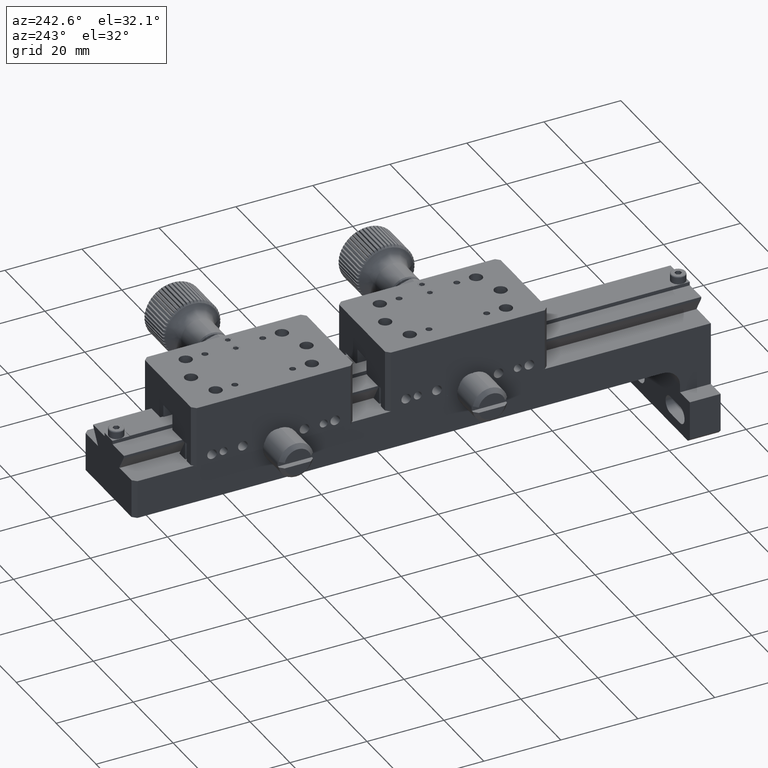
[diagram: clean part render]
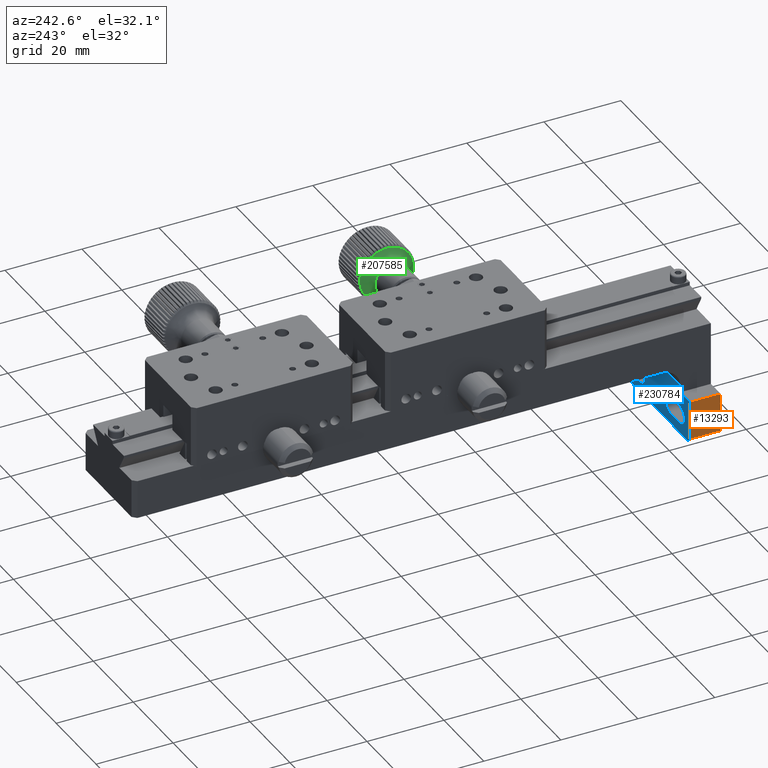
[diagram: same view with three faces highlighted in distinct colors, each labeled with its STEP entity id]
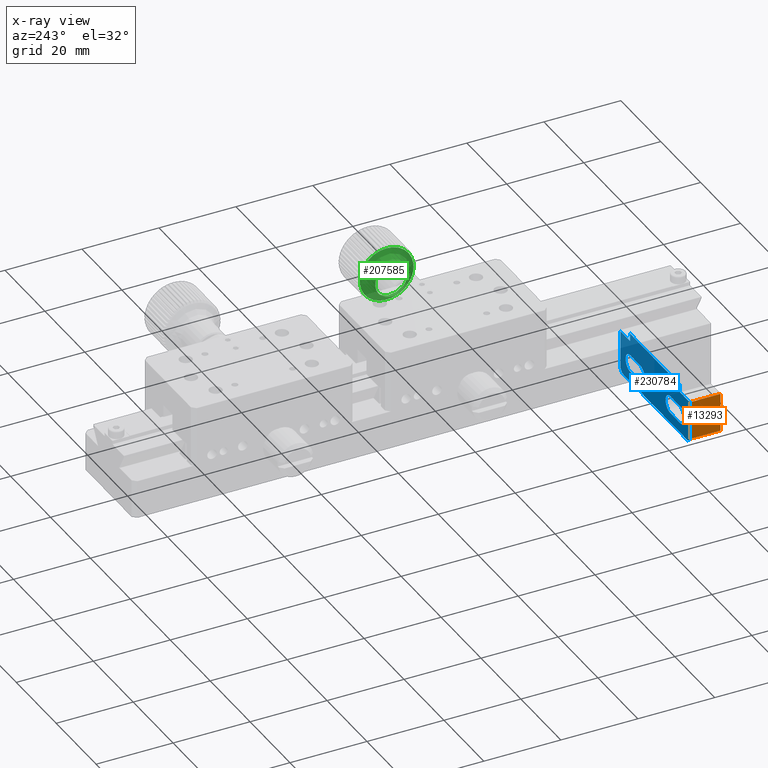
[diagram: x-ray of the same camera — body ghosted, the three highlighted faces saturated]
A machine part, auxiliary view with three faces highlighted in distinct colors.
The next image is the same camera in x-ray (body ghosted, the three faces saturated) — at least one of them is partly hidden behind the body in this view.
Their STEP definitions:

[orange] entity #13293 — the highlighted planar face has unit normal (-1, 0, -0).
#3068 = DIRECTION ( 'NONE',  ( -4.153203184749335138E-30, -1.000000000000000000, -1.646779214876870945E-45 ) ) ;
#7846 = LINE ( 'NONE', #201631, #25861 ) ;
#13050 = ORIENTED_EDGE ( 'NONE', *, *, #106882, .T. ) ;
#13293 = ADVANCED_FACE ( 'NONE', ( #224790 ), #100991, .T. ) ;
#22605 = VERTEX_POINT ( 'NONE', #151375 ) ;
#25861 = VECTOR ( 'NONE', #43966, 1000.000000000000000 ) ;
#31115 = AXIS2_PLACEMENT_3D ( 'NONE', #78874, #64791, #172228 ) ;
#32580 = EDGE_CURVE ( 'NONE', #64583, #22605, #7846, .T. ) ;
#32590 = CARTESIAN_POINT ( 'NONE',  ( -42.75755063790384725, -63.92240437158443456, -20.95415882861682277 ) ) ;
#38081 = VERTEX_POINT ( 'NONE', #182726 ) ;
#43966 = DIRECTION ( 'NONE',  ( 0.000000000000000000, -1.047444401652940164E-14, 1.000000000000000000 ) ) ;
#54408 = CARTESIAN_POINT ( 'NONE',  ( -42.75755063790384014, -63.92240437158461219, -20.95415882861682277 ) ) ;
#64583 = VERTEX_POINT ( 'NONE', #32590 ) ;
#64791 = DIRECTION ( 'NONE',  ( -1.000000000000000000, 4.153203184749335138E-30, -3.965082230804129727E-16 ) ) ;
#73657 = VECTOR ( 'NONE', #102270, 1000.000000000000000 ) ;
#78874 = CARTESIAN_POINT ( 'NONE',  ( -42.75755063790384725, -63.92240437158461219, -4.454158828616828103 ) ) ;
#91854 = VERTEX_POINT ( 'NONE', #158394 ) ;
#100991 = PLANE ( 'NONE',  #31115 ) ;
#102270 = DIRECTION ( 'NONE',  ( 0.000000000000000000, 1.047444401652940164E-14, -1.000000000000000000 ) ) ;
#103594 = DIRECTION ( 'NONE',  ( 0.000000000000000000, 1.000000000000000000, 1.047444401652940164E-14 ) ) ;
#106882 = EDGE_CURVE ( 'NONE', #91854, #22605, #178267, .T. ) ;
#113964 = ORIENTED_EDGE ( 'NONE', *, *, #225570, .F. ) ;
#136277 = ORIENTED_EDGE ( 'NONE', *, *, #32580, .F. ) ;
#139895 = EDGE_LOOP ( 'NONE', ( #113964, #13050, #136277, #202454 ) ) ;
#151375 = CARTESIAN_POINT ( 'NONE',  ( -42.75755063790384725, -63.92240437158454114, -10.95415882861683343 ) ) ;
#157138 = LINE ( 'NONE', #192166, #73657 ) ;
#158394 = CARTESIAN_POINT ( 'NONE',  ( -42.75755063790384725, -71.92240437158453403, -10.95415882861692403 ) ) ;
#171285 = VECTOR ( 'NONE', #103594, 1000.000000000000000 ) ;
#171742 = EDGE_CURVE ( 'NONE', #64583, #38081, #214403, .T. ) ;
#172228 = DIRECTION ( 'NONE',  ( -3.965082230804129727E-16, 0.000000000000000000, 1.000000000000000000 ) ) ;
#173684 = CARTESIAN_POINT ( 'NONE',  ( -42.75755063790384725, -71.92240437158454824, -10.95415882861692403 ) ) ;
#178267 = LINE ( 'NONE', #173684, #171285 ) ;
#182726 = CARTESIAN_POINT ( 'NONE',  ( -42.75755063790385435, -71.92240437158442035, -20.95415882861686896 ) ) ;
#192166 = CARTESIAN_POINT ( 'NONE',  ( -42.75755063790384725, -71.92240437158460509, -4.454158828616924914 ) ) ;
#201631 = CARTESIAN_POINT ( 'NONE',  ( -42.75755063790384725, -63.92240437158461219, -4.454158828616828103 ) ) ;
#202454 = ORIENTED_EDGE ( 'NONE', *, *, #171742, .T. ) ;
#214403 = LINE ( 'NONE', #54408, #218606 ) ;
#218606 = VECTOR ( 'NONE', #3068, 1000.000000000000000 ) ;
#224790 = FACE_OUTER_BOUND ( 'NONE', #139895, .T. ) ;
#225570 = EDGE_CURVE ( 'NONE', #91854, #38081, #157138, .T. ) ;

[blue] entity #230784 — the highlighted planar face has unit normal (0, 1, 0).
#1784 = EDGE_CURVE ( 'NONE', #7994, #170872, #140537, .T. ) ;
#6597 = CARTESIAN_POINT ( 'NONE',  ( -8.957550637903850088, -63.92240437158440614, -21.95415882861681567 ) ) ;
#7846 = LINE ( 'NONE', #201631, #25861 ) ;
#7994 = VERTEX_POINT ( 'NONE', #223589 ) ;
#8483 = CARTESIAN_POINT ( 'NONE',  ( -25.35755063790384867, -63.92240437158454114, -10.95415882861682633 ) ) ;
#9341 = AXIS2_PLACEMENT_3D ( 'NONE', #22734, #44851, #76433 ) ;
#9762 = VECTOR ( 'NONE', #66029, 1000.000000000000000 ) ;
#11910 = DIRECTION ( 'NONE',  ( 1.000000000000000000, 0.000000000000000000, -0.000000000000000000 ) ) ;
#12559 = VECTOR ( 'NONE', #26056, 1000.000000000000000 ) ;
#12920 = CARTESIAN_POINT ( 'NONE',  ( -12.85755063790385044, -63.92240437158446298, -17.05415882861683485 ) ) ;
#15970 = DIRECTION ( 'NONE',  ( 0.000000000000000000, 1.000000000000000000, 1.047444401652940164E-14 ) ) ;
#19093 = EDGE_CURVE ( 'NONE', #132745, #92130, #99944, .T. ) ;
#20493 = CARTESIAN_POINT ( 'NONE',  ( -37.85755063790385577, -63.92240437158448429, -17.05415882861683485 ) ) ;
#20628 = VERTEX_POINT ( 'NONE', #39625 ) ;
#21223 = LINE ( 'NONE', #163680, #192689 ) ;
#22605 = VERTEX_POINT ( 'NONE', #151375 ) ;
#22734 = CARTESIAN_POINT ( 'NONE',  ( -32.85755063790384867, -63.92240437158446298, -17.05415882861683485 ) ) ;
#24020 = LINE ( 'NONE', #186317, #214945 ) ;
#25508 = LINE ( 'NONE', #96711, #80883 ) ;
#25861 = VECTOR ( 'NONE', #43966, 1000.000000000000000 ) ;
#26056 = DIRECTION ( 'NONE',  ( 1.000000000000000000, 0.000000000000000000, -0.000000000000000000 ) ) ;
#27345 = CARTESIAN_POINT ( 'NONE',  ( -25.35755063790384867, -63.92240437158449851, -14.80415882861682597 ) ) ;
#32580 = EDGE_CURVE ( 'NONE', #64583, #22605, #7846, .T. ) ;
#32590 = CARTESIAN_POINT ( 'NONE',  ( -42.75755063790384725, -63.92240437158443456, -20.95415882861682277 ) ) ;
#32704 = CARTESIAN_POINT ( 'NONE',  ( -17.85755063790385577, -63.92240437158446298, -19.30415882861683130 ) ) ;
#33866 = EDGE_CURVE ( 'NONE', #85858, #185007, #57738, .T. ) ;
#36073 = ORIENTED_EDGE ( 'NONE', *, *, #190755, .T. ) ;
#38820 = DIRECTION ( 'NONE',  ( 1.000000000000000000, -3.911410985983294585E-32, -4.221912464982364608E-46 ) ) ;
#39625 = CARTESIAN_POINT ( 'NONE',  ( -12.85755063790385044, -63.92240437158455535, -10.95415882861682633 ) ) ;
#40710 = CARTESIAN_POINT ( 'NONE',  ( -25.35755063790384867, -63.92240437158442035, -21.95415882861681567 ) ) ;
#42160 = EDGE_CURVE ( 'NONE', #205523, #56384, #200680, .T. ) ;
#43966 = DIRECTION ( 'NONE',  ( 0.000000000000000000, -1.047444401652940164E-14, 1.000000000000000000 ) ) ;
#44401 = CIRCLE ( 'NONE', #227114, 2.250000000000001776 ) ;
#44851 = DIRECTION ( 'NONE',  ( -0.000000000000000000, -1.000000000000000000, -1.047444401652940164E-14 ) ) ;
#47354 = VERTEX_POINT ( 'NONE', #56156 ) ;
#49058 = CARTESIAN_POINT ( 'NONE',  ( -12.85755063790385044, -63.92240437158455535, -8.954158828616824550 ) ) ;
#49840 = PLANE ( 'NONE',  #200375 ) ;
#56156 = CARTESIAN_POINT ( 'NONE',  ( -7.957550637903862523, -63.92240437158442035, -20.95415882861687606 ) ) ;
#56384 = VERTEX_POINT ( 'NONE', #70267 ) ;
#57738 = LINE ( 'NONE', #27345, #59327 ) ;
#59327 = VECTOR ( 'NONE', #201366, 1000.000000000000000 ) ;
#62103 = VECTOR ( 'NONE', #11910, 1000.000000000000000 ) ;
#62758 = CARTESIAN_POINT ( 'NONE',  ( -37.85755063790385577, -63.92240437158449851, -14.80415882861682597 ) ) ;
#64583 = VERTEX_POINT ( 'NONE', #32590 ) ;
#66029 = DIRECTION ( 'NONE',  ( -1.000000000000000000, -0.000000000000000000, 0.000000000000000000 ) ) ;
#67988 = CARTESIAN_POINT ( 'NONE',  ( -7.957550637903848312, -63.92240437158454114, -10.95415882861683343 ) ) ;
#70267 = CARTESIAN_POINT ( 'NONE',  ( -41.75755063790380461, -63.92240437158442035, -21.95415882861684409 ) ) ;
#70324 = VECTOR ( 'NONE', #134074, 1000.000000000000000 ) ;
#72613 = CIRCLE ( 'NONE', #9341, 2.250000000000001776 ) ;
#73395 = ORIENTED_EDGE ( 'NONE', *, *, #19093, .T. ) ;
#74584 = VERTEX_POINT ( 'NONE', #67988 ) ;
#76433 = DIRECTION ( 'NONE',  ( 0.000000000000000000, -1.233581138472395244E-14, 1.000000000000000000 ) ) ;
#77548 = ORIENTED_EDGE ( 'NONE', *, *, #33866, .T. ) ;
#77903 = VECTOR ( 'NONE', #92960, 1000.000000000000114 ) ;
#78822 = VECTOR ( 'NONE', #89107, 1000.000000000000000 ) ;
#80799 = LINE ( 'NONE', #8483, #62103 ) ;
#80883 = VECTOR ( 'NONE', #167955, 1000.000000000000000 ) ;
#81284 = ORIENTED_EDGE ( 'NONE', *, *, #87872, .T. ) ;
#81306 = ORIENTED_EDGE ( 'NONE', *, *, #162829, .T. ) ;
#81573 = VECTOR ( 'NONE', #166517, 1000.000000000000000 ) ;
#81654 = CARTESIAN_POINT ( 'NONE',  ( -32.85755063790384867, -63.92240437158448429, -14.80415882861682597 ) ) ;
#82766 = VERTEX_POINT ( 'NONE', #148239 ) ;
#83017 = CARTESIAN_POINT ( 'NONE',  ( -12.85755063790385044, -63.92240437158448429, -14.80415882861682597 ) ) ;
#84102 = DIRECTION ( 'NONE',  ( 0.000000000000000000, -1.233581138472395244E-14, 1.000000000000000000 ) ) ;
#85858 = VERTEX_POINT ( 'NONE', #81654 ) ;
#87872 = EDGE_CURVE ( 'NONE', #142497, #210993, #25508, .T. ) ;
#89068 = CARTESIAN_POINT ( 'NONE',  ( -37.85755063790385577, -63.92240437158455535, -8.954158828616824550 ) ) ;
#89107 = DIRECTION ( 'NONE',  ( 1.000000000000000000, 0.000000000000000000, -0.000000000000000000 ) ) ;
#90981 = CARTESIAN_POINT ( 'NONE',  ( -7.957550637903848312, -63.92240437158461219, -4.454158828616828103 ) ) ;
#91787 = LINE ( 'NONE', #6597, #77903 ) ;
#92130 = VERTEX_POINT ( 'NONE', #142015 ) ;
#92960 = DIRECTION ( 'NONE',  ( -0.7071067811865474617, -0.000000000000000000, -0.7071067811865474617 ) ) ;
#93298 = ORIENTED_EDGE ( 'NONE', *, *, #172118, .T. ) ;
#94363 = VECTOR ( 'NONE', #38820, 1000.000000000000000 ) ;
#95237 = DIRECTION ( 'NONE',  ( -3.469446951953615175E-16, -0.000000000000000000, -1.000000000000000000 ) ) ;
#96711 = CARTESIAN_POINT ( 'NONE',  ( -37.85755063790385577, -63.92240437158449851, 5.545841171384680024 ) ) ;
#98776 = CARTESIAN_POINT ( 'NONE',  ( -25.35755063790384867, -63.92240437158449851, -14.80415882861682597 ) ) ;
#99277 = ORIENTED_EDGE ( 'NONE', *, *, #151371, .T. ) ;
#99944 = LINE ( 'NONE', #98776, #9762 ) ;
#100624 = CARTESIAN_POINT ( 'NONE',  ( -8.957550637903850088, -63.92240437158440614, -21.95415882861681567 ) ) ;
#102171 = CARTESIAN_POINT ( 'NONE',  ( -17.85755063790385577, -63.92240437158448429, -17.05415882861683485 ) ) ;
#103557 = FACE_BOUND ( 'NONE', #198735, .T. ) ;
#105765 = DIRECTION ( 'NONE',  ( 0.000000000000000000, -1.233581138472395244E-14, 1.000000000000000000 ) ) ;
#111407 = CARTESIAN_POINT ( 'NONE',  ( -37.85755063790385577, -63.92240437158451272, -10.95415882861688850 ) ) ;
#112473 = EDGE_LOOP ( 'NONE', ( #205941, #77548, #186911, #124748 ) ) ;
#114775 = CARTESIAN_POINT ( 'NONE',  ( -25.35755063790384867, -63.92240437158454114, -10.95415882861682633 ) ) ;
#117948 = VECTOR ( 'NONE', #198400, 1000.000000000000000 ) ;
#124748 = ORIENTED_EDGE ( 'NONE', *, *, #1784, .T. ) ;
#126752 = DIRECTION ( 'NONE',  ( -0.000000000000000000, -1.000000000000000000, -1.047444401652940164E-14 ) ) ;
#131315 = VERTEX_POINT ( 'NONE', #49058 ) ;
#132745 = VERTEX_POINT ( 'NONE', #83017 ) ;
#134074 = DIRECTION ( 'NONE',  ( -1.000000000000000000, -0.000000000000000000, 0.000000000000000000 ) ) ;
#136219 = EDGE_CURVE ( 'NONE', #170872, #85858, #72613, .T. ) ;
#138358 = DIRECTION ( 'NONE',  ( -0.000000000000000000, -1.000000000000000000, -1.047444401652940164E-14 ) ) ;
#140537 = LINE ( 'NONE', #230428, #78822 ) ;
#140902 = CARTESIAN_POINT ( 'NONE',  ( -25.35755063790384867, -63.92240437158461219, -4.454158828616828103 ) ) ;
#142015 = CARTESIAN_POINT ( 'NONE',  ( -17.85755063790385577, -63.92240437158449851, -14.80415882861682597 ) ) ;
#142053 = CARTESIAN_POINT ( 'NONE',  ( -37.85755063790385577, -63.92240437158452693, -8.954158828616824550 ) ) ;
#142497 = VERTEX_POINT ( 'NONE', #111407 ) ;
#146645 = EDGE_CURVE ( 'NONE', #22605, #142497, #80799, .T. ) ;
#146672 = LINE ( 'NONE', #217896, #81573 ) ;
#148239 = CARTESIAN_POINT ( 'NONE',  ( -12.85755063790385044, -63.92240437158446298, -19.30415882861683130 ) ) ;
#148606 = EDGE_CURVE ( 'NONE', #185007, #7994, #185323, .T. ) ;
#148985 = ORIENTED_EDGE ( 'NONE', *, *, #190276, .T. ) ;
#151371 = EDGE_CURVE ( 'NONE', #82766, #132745, #158775, .T. ) ;
#151375 = CARTESIAN_POINT ( 'NONE',  ( -42.75755063790384725, -63.92240437158454114, -10.95415882861683343 ) ) ;
#151525 = EDGE_CURVE ( 'NONE', #74584, #47354, #179738, .T. ) ;
#157284 = FACE_BOUND ( 'NONE', #112473, .T. ) ;
#157641 = DIRECTION ( 'NONE',  ( -0.000000000000000000, -1.000000000000000000, -1.047444401652940164E-14 ) ) ;
#158775 = CIRCLE ( 'NONE', #188647, 2.250000000000001776 ) ;
#162599 = LINE ( 'NONE', #89068, #94363 ) ;
#162829 = EDGE_CURVE ( 'NONE', #210993, #131315, #162599, .T. ) ;
#163680 = CARTESIAN_POINT ( 'NONE',  ( -42.75755063790384725, -63.92240437158440614, -20.95415882861682277 ) ) ;
#163878 = LINE ( 'NONE', #114775, #12559 ) ;
#164677 = ORIENTED_EDGE ( 'NONE', *, *, #146645, .T. ) ;
#164840 = DIRECTION ( 'NONE',  ( -0.7071067811865474617, -0.000000000000000000, 0.7071067811865474617 ) ) ;
#165001 = EDGE_CURVE ( 'NONE', #20628, #74584, #163878, .T. ) ;
#165765 = ORIENTED_EDGE ( 'NONE', *, *, #151525, .T. ) ;
#166517 = DIRECTION ( 'NONE',  ( 1.000000000000000000, 0.000000000000000000, -0.000000000000000000 ) ) ;
#167955 = DIRECTION ( 'NONE',  ( -0.000000000000000000, -0.000000000000000000, 1.000000000000000000 ) ) ;
#170559 = CARTESIAN_POINT ( 'NONE',  ( -32.85755063790384867, -63.92240437158446298, -19.30415882861683130 ) ) ;
#170872 = VERTEX_POINT ( 'NONE', #170559 ) ;
#172118 = EDGE_CURVE ( 'NONE', #131315, #20628, #24020, .T. ) ;
#173633 = AXIS2_PLACEMENT_3D ( 'NONE', #20493, #126752, #105765 ) ;
#173762 = EDGE_LOOP ( 'NONE', ( #165765, #148985, #222998, #202226, #190467, #164677, #81284, #81306, #93298, #205276 ) ) ;
#176944 = VERTEX_POINT ( 'NONE', #32704 ) ;
#179738 = LINE ( 'NONE', #90981, #117948 ) ;
#185007 = VERTEX_POINT ( 'NONE', #62758 ) ;
#185323 = CIRCLE ( 'NONE', #173633, 2.250000000000001776 ) ;
#186317 = CARTESIAN_POINT ( 'NONE',  ( -12.85755063790385044, -63.92240437158455535, -4.454158828615328858 ) ) ;
#186911 = ORIENTED_EDGE ( 'NONE', *, *, #148606, .T. ) ;
#188647 = AXIS2_PLACEMENT_3D ( 'NONE', #12920, #157641, #84102 ) ;
#190276 = EDGE_CURVE ( 'NONE', #47354, #205523, #91787, .T. ) ;
#190467 = ORIENTED_EDGE ( 'NONE', *, *, #32580, .T. ) ;
#190471 = EDGE_CURVE ( 'NONE', #176944, #82766, #146672, .T. ) ;
#190755 = EDGE_CURVE ( 'NONE', #92130, #176944, #44401, .T. ) ;
#192689 = VECTOR ( 'NONE', #164840, 1000.000000000000114 ) ;
#198352 = ORIENTED_EDGE ( 'NONE', *, *, #190471, .T. ) ;
#198400 = DIRECTION ( 'NONE',  ( -0.000000000000000000, 1.047444401652940164E-14, -1.000000000000000000 ) ) ;
#198735 = EDGE_LOOP ( 'NONE', ( #99277, #73395, #36073, #198352 ) ) ;
#200375 = AXIS2_PLACEMENT_3D ( 'NONE', #140902, #15970, #214413 ) ;
#200680 = LINE ( 'NONE', #40710, #70324 ) ;
#201366 = DIRECTION ( 'NONE',  ( -1.000000000000000000, -0.000000000000000000, 0.000000000000000000 ) ) ;
#201631 = CARTESIAN_POINT ( 'NONE',  ( -42.75755063790384725, -63.92240437158461219, -4.454158828616828103 ) ) ;
#202226 = ORIENTED_EDGE ( 'NONE', *, *, #218317, .T. ) ;
#205276 = ORIENTED_EDGE ( 'NONE', *, *, #165001, .T. ) ;
#205523 = VERTEX_POINT ( 'NONE', #100624 ) ;
#205941 = ORIENTED_EDGE ( 'NONE', *, *, #136219, .T. ) ;
#209832 = FACE_OUTER_BOUND ( 'NONE', #173762, .T. ) ;
#210993 = VERTEX_POINT ( 'NONE', #142053 ) ;
#214413 = DIRECTION ( 'NONE',  ( 0.000000000000000000, -1.047444401652940164E-14, 1.000000000000000000 ) ) ;
#214945 = VECTOR ( 'NONE', #95237, 1000.000000000000000 ) ;
#217896 = CARTESIAN_POINT ( 'NONE',  ( -25.35755063790384867, -63.92240437158444877, -19.30415882861682420 ) ) ;
#218317 = EDGE_CURVE ( 'NONE', #56384, #64583, #21223, .T. ) ;
#222998 = ORIENTED_EDGE ( 'NONE', *, *, #42160, .T. ) ;
#223589 = CARTESIAN_POINT ( 'NONE',  ( -37.85755063790385577, -63.92240437158446298, -19.30415882861683130 ) ) ;
#225963 = DIRECTION ( 'NONE',  ( 0.000000000000000000, -1.233581138472395244E-14, 1.000000000000000000 ) ) ;
#227114 = AXIS2_PLACEMENT_3D ( 'NONE', #102171, #138358, #225963 ) ;
#230428 = CARTESIAN_POINT ( 'NONE',  ( -25.35755063790384867, -63.92240437158444877, -19.30415882861682420 ) ) ;
#230784 = ADVANCED_FACE ( 'NONE', ( #209832, #157284, #103557 ), #49840, .T. ) ;

[green] entity #207585 — the highlighted face is a freeform B-spline surface patch.
#2257 = EDGE_CURVE ( 'NONE', #62212, #62212, #187196, .T. ) ;
#19645 = CARTESIAN_POINT ( 'NONE',  ( 2.687062307495633462, -15.42873427692641819, 24.80531863090599387 ) ) ;
#20556 = CARTESIAN_POINT ( 'NONE',  ( 2.942449362106414057, -15.79530151848075548, 13.72968214256259323 ) ) ;
#20779 = CARTESIAN_POINT ( 'NONE',  ( 2.942449362106424271, -15.79530151848075548, 13.72968214256258790 ) ) ;
#21949 = CARTESIAN_POINT ( 'NONE',  ( 1.516731798225803063, -4.357058816356010666, 14.91989384108061500 ) ) ;
#22305 = EDGE_LOOP ( 'NONE', ( #199219 ) ) ;
#23097 = CARTESIAN_POINT ( 'NONE',  ( 1.516731798225741779, -13.30872701801879820, 13.98842381615354569 ) ) ;
#37149 = CARTESIAN_POINT ( 'NONE',  ( -0.01559052944397678470, -3.425588791428896496, 5.968225639417854111 ) ) ;
#39453 = CARTESIAN_POINT ( 'NONE',  ( 2.942449362106424271, -15.79530151848075548, 13.72968214256258790 ) ) ;
#40615 = CARTESIAN_POINT ( 'NONE',  ( -0.01559052944403794064, -12.37725699309175909, 5.036755614490778576 ) ) ;
#45855 = DIRECTION ( 'NONE',  ( -6.167905692361983322E-15, -0.9946298001847644343, -0.1034966694363420314 ) ) ;
#56955 = CARTESIAN_POINT ( 'NONE',  ( 2.687062307494907820, -14.29252511005080528, 13.88605424517919928 ) ) ;
#58107 = CARTESIAN_POINT ( 'NONE',  ( 2.687062307494257229, -2.237051557448395123, 4.102999026328011389 ) ) ;
#58687 = DIRECTION ( 'NONE',  ( -5.947623346206194738E-15, -0.9946298001847644343, -0.1034966694363421980 ) ) ;
#59276 = FACE_OUTER_BOUND ( 'NONE', #22305, .T. ) ;
#62212 = VERTEX_POINT ( 'NONE', #20556 ) ;
#72192 = CARTESIAN_POINT ( 'NONE',  ( -0.01559052944344355845, -13.30872701801883728, 13.98842381615364516 ) ) ;
#74258 = CARTESIAN_POINT ( 'NONE',  ( -0.01559052944341554614, -8.832892917187404436, 14.45415882861718337 ) ) ;
#75644 = CARTESIAN_POINT ( 'NONE',  ( 2.942449362105499677, -14.34634814637195888, -0.1951350600241149591 ) ) ;
#77369 = DIRECTION ( 'NONE',  ( 1.000000000000000000, 9.195162568877400879E-16, -6.630359850644110404E-14 ) ) ;
#89700 = CARTESIAN_POINT ( 'NONE',  ( -0.01559052944278801686, -5.288528841283045345, 23.87156204274358373 ) ) ;
#90851 = CARTESIAN_POINT ( 'NONE',  ( 2.942449362106519306, -1.870484315894052507, 15.17863551467138450 ) ) ;
#93165 = CARTESIAN_POINT ( 'NONE',  ( 2.687062307494182622, -13.15631594317518704, 2.966789859452397149 ) ) ;
#94325 = CARTESIAN_POINT ( 'NONE',  ( 2.942449362107443456, -3.319437688002846887, 29.10345271725809013 ) ) ;
#95881 = CIRCLE ( 'NONE', #185406, 4.499999999999998224 ) ;
#108368 = CARTESIAN_POINT ( 'NONE',  ( 1.516731798225147587, -12.37725699309173066, 5.036755614490760813 ) ) ;
#111828 = CARTESIAN_POINT ( 'NONE',  ( 2.687062307495707181, -4.509469891199614722, 25.94152779778160678 ) ) ;
#119485 = EDGE_LOOP ( 'NONE', ( #224580 ) ) ;
#129355 = CARTESIAN_POINT ( 'NONE',  ( 2.942449362107349309, -17.24425489058955563, 27.65449934514928998 ) ) ;
#130517 = CARTESIAN_POINT ( 'NONE',  ( -0.01559052944344355845, -13.30872701801883728, 13.98842381615364516 ) ) ;
#143420 = CARTESIAN_POINT ( 'NONE',  ( 1.516731798225208872, -3.425588791428943569, 5.968225639417828354 ) ) ;
#144575 = CARTESIAN_POINT ( 'NONE',  ( 1.516731798225741779, -13.30872701801879820, 13.98842381615354569 ) ) ;
#146874 = CARTESIAN_POINT ( 'NONE',  ( 1.516731798226397254, -5.288528841283078208, 23.87156204274340254 ) ) ;
#148039 = CARTESIAN_POINT ( 'NONE',  ( -0.01559052944338240425, -4.357058816355970698, 14.91989384108072159 ) ) ;
#149276 = CARTESIAN_POINT ( 'NONE',  ( -0.01559052944344330172, -13.30872701801884261, 13.98842381615364516 ) ) ;
#160938 = CARTESIAN_POINT ( 'NONE',  ( -0.01559052944284917801, -14.24019704294591371, 22.94009201781651086 ) ) ;
#179605 = CARTESIAN_POINT ( 'NONE',  ( 2.687062307494907820, -14.29252511005080528, 13.88605424517919928 ) ) ;
#180537 = DIRECTION ( 'NONE',  ( -1.000000000000000000, -7.632783294297768791E-17, 6.639133687258439898E-14 ) ) ;
#181927 = CARTESIAN_POINT ( 'NONE',  ( 1.516731798226336192, -14.24019704294586575, 22.94009201781633323 ) ) ;
#185016 =( BOUNDED_SURFACE ( )  B_SPLINE_SURFACE ( 3, 3, ( 
 ( #130517, #40615, #37149, #148039, #89700, #160938, #72192 ),
 ( #144575, #108368, #143420, #21949, #146874, #181927, #23097 ),
 ( #179605, #93165, #58107, #216931, #111828, #19645, #56955 ),
 ( #20779, #75644, #215797, #90851, #94325, #129355, #39453 ) ),
 .UNSPECIFIED., .F., .T., .T. ) 
 B_SPLINE_SURFACE_WITH_KNOTS ( ( 4, 4 ),
 ( 4, 3, 4 ),
 ( 0.000000000000000000, 1.000000000000000000 ),
 ( 0.000000000000000000, 0.5000000000000000000, 1.000000000000000000 ),
 .UNSPECIFIED. ) 
 GEOMETRIC_REPRESENTATION_ITEM ( )  RATIONAL_B_SPLINE_SURFACE ( (
 ( 1.000000000000000000, 0.3333333333333333148, 0.3333333333333333148, 1.000000000000000000, 0.3333333333333333148, 0.3333333333333333148, 1.000000000000000000),
 ( 0.8425084105506428500, 0.2808361368502142463, 0.2808361368502142463, 0.8425084105506428500, 0.2808361368502142463, 0.2808361368502142463, 0.8425084105506428500),
 ( 0.8425084105506428500, 0.2808361368502142463, 0.2808361368502142463, 0.8425084105506428500, 0.2808361368502142463, 0.2808361368502142463, 0.8425084105506428500),
 ( 1.000000000000000000, 0.3333333333333333148, 0.3333333333333333148, 1.000000000000000000, 0.3333333333333333148, 0.3333333333333333148, 1.000000000000000000) ) ) 
 REPRESENTATION_ITEM ( '' )  SURFACE ( )  );
#185406 = AXIS2_PLACEMENT_3D ( 'NONE', #74258, #180537, #45855 ) ;
#187196 = CIRCLE ( 'NONE', #198299, 7.000000000000000888 ) ;
#197125 = FACE_OUTER_BOUND ( 'NONE', #119485, .T. ) ;
#197689 = CARTESIAN_POINT ( 'NONE',  ( 2.942449362106455801, -8.832892917187404436, 14.45415882861698975 ) ) ;
#198299 = AXIS2_PLACEMENT_3D ( 'NONE', #197689, #77369, #58687 ) ;
#199219 = ORIENTED_EDGE ( 'NONE', *, *, #231082, .F. ) ;
#202965 = VERTEX_POINT ( 'NONE', #149276 ) ;
#207585 = ADVANCED_FACE ( 'NONE', ( #59276, #197125 ), #185016, .F. ) ;
#215797 = CARTESIAN_POINT ( 'NONE',  ( 2.942449362105594712, -0.4215309437852581276, 1.253818312084681308 ) ) ;
#216931 = CARTESIAN_POINT ( 'NONE',  ( 2.687062307494982427, -3.373260724324004478, 15.02226341205480864 ) ) ;
#224580 = ORIENTED_EDGE ( 'NONE', *, *, #2257, .F. ) ;
#231082 = EDGE_CURVE ( 'NONE', #202965, #202965, #95881, .T. ) ;